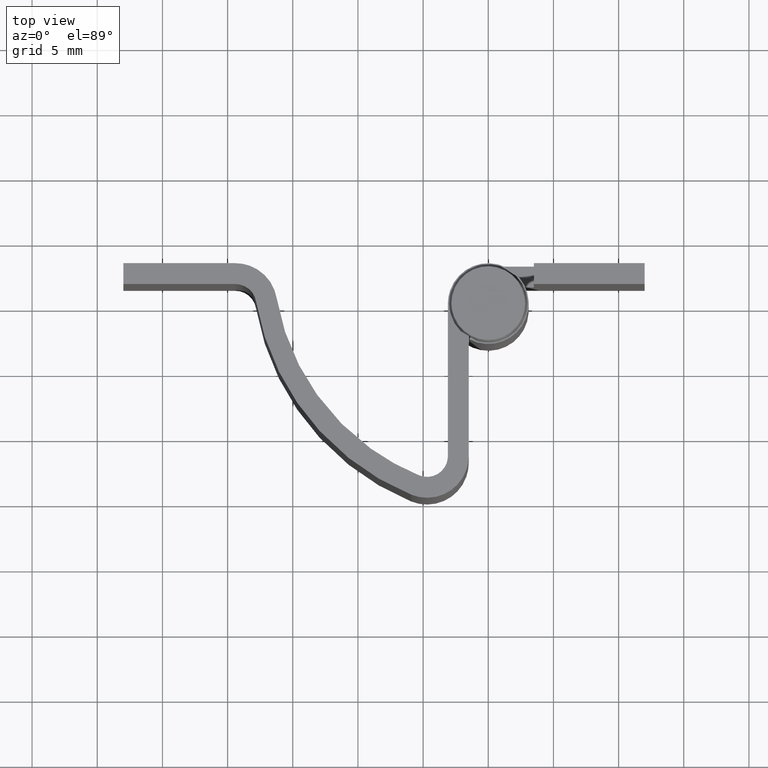
[diagram: clean part render]
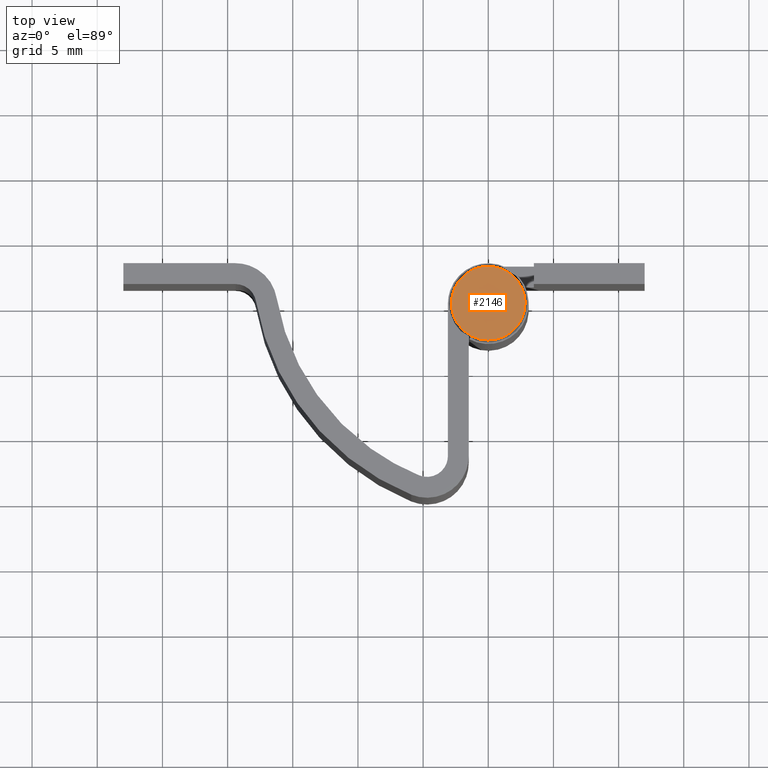
[diagram: same view with one face highlighted and labeled with its STEP entity id]
A machine part, top view. The second image highlights one B-rep face of the part: STEP entity #2146.
In plain terms, the highlighted face is a freeform B-spline surface patch.
Its self-contained STEP definition (entity closure, byte-faithful):
#2100=CARTESIAN_POINT('',(-2.828427048553670,0.0,35.000008215504963));
#2101=VERTEX_POINT('',#2100);
#2102=CARTESIAN_POINT('',(2.828427048553670,0.0,35.000008215504963));
#2103=VERTEX_POINT('',#2102);
#2104=CARTESIAN_POINT('',(-2.828427048553670,0.0,35.000008215504963));
#2105=CARTESIAN_POINT('',(-2.828427048553670,2.828427048553670,35.000008215504963));
#2106=CARTESIAN_POINT('',(0.0,2.828427048553670,35.000008215504963));
#2107=CARTESIAN_POINT('',(2.828427048553670,2.828427048553670,35.000008215504963));
#2108=CARTESIAN_POINT('',(2.828427048553670,0.0,35.000008215504963));
#2116=(BOUNDED_CURVE()B_SPLINE_CURVE(2,(#2104,#2105,#2106,#2107,#2108),.UNSPECIFIED.,.F.,.U.)B_SPLINE_CURVE_WITH_KNOTS((3,2,3),(0.0,0.250000000000000,0.500000000000000),.UNSPECIFIED.)CURVE()GEOMETRIC_REPRESENTATION_ITEM()RATIONAL_B_SPLINE_CURVE((1.0,0.707106781186547,1.0,0.707106781186547,1.0))REPRESENTATION_ITEM(''));
#2117=EDGE_CURVE('',#2101,#2103,#2116,.T.);
#2119=CARTESIAN_POINT('',(2.828427048553670,0.0,35.000008215504963));
#2120=CARTESIAN_POINT('',(2.828427048553670,-2.828427048553670,35.000008215504963));
#2121=CARTESIAN_POINT('',(0.0,-2.828427048553670,35.000008215504963));
#2122=CARTESIAN_POINT('',(-2.828427048553670,-2.828427048553670,35.000008215504963));
#2123=CARTESIAN_POINT('',(-2.828427048553670,0.0,35.000008215504963));
#2131=(BOUNDED_CURVE()B_SPLINE_CURVE(2,(#2119,#2120,#2121,#2122,#2123),.UNSPECIFIED.,.F.,.U.)B_SPLINE_CURVE_WITH_KNOTS((3,2,3),(0.500000000000000,0.750000000000000,1.0),.UNSPECIFIED.)CURVE()GEOMETRIC_REPRESENTATION_ITEM()RATIONAL_B_SPLINE_CURVE((1.0,0.707106781186547,1.0,0.707106781186547,1.0))REPRESENTATION_ITEM(''));
#2132=EDGE_CURVE('',#2103,#2101,#2131,.T.);
#2137=CARTESIAN_POINT('',(3.110986952842600,-3.110986952842386,35.000008107752500));
#2138=CARTESIAN_POINT('',(-3.110987053995034,-3.110986952842386,35.000008107752500));
#2139=CARTESIAN_POINT('',(3.110986952842600,3.110987053994820,35.000008107752500));
#2140=CARTESIAN_POINT('',(-3.110987053995034,3.110987053994820,35.000008107752500));
#2141=B_SPLINE_SURFACE_WITH_KNOTS('',1,1,((#2137,#2139),(#2138,#2140)),.UNSPECIFIED.,.F.,.F.,.U.,(2,2),(2,2),(0.0,6.221974006837634),(0.0,6.221974006837206),.UNSPECIFIED.);
#2142=ORIENTED_EDGE('',*,*,#2132,.F.);
#2143=ORIENTED_EDGE('',*,*,#2117,.F.);
#2144=EDGE_LOOP('',(#2142,#2143));
#2145=FACE_OUTER_BOUND('',#2144,.T.);
#2146=ADVANCED_FACE('',(#2145),#2141,.F.);